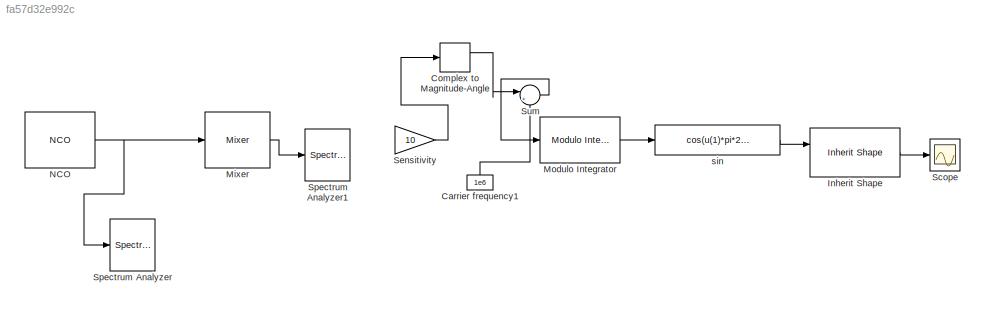
MODEL slx_fa57d32e992c
KIND model
CONFIG AbsTol = auto
CONFIG FixedStep = auto
CONFIG MaxStep = auto
CONFIG MinStep = auto
CONFIG RelTol = 1e-3
CONFIG SampleTimeConstraint = Unconstrained
CONFIG Solver = VariableStepAuto
CONFIG SolverMode = Auto
CONFIG SolverName = VariableStepAuto
CONFIG StartTime = 0.0
CONFIG StopTime = 1600
BLOCK [Constant] Carrier frequency1
  Value = 1e6
BLOCK [ComplexToMagnitudeAngle] Complex to Magnitude-Angle
  Ports = [1, 2]
BLOCK [Reference] Inherit Shape  REF=commblksprivate/Inherit Shape
  Ports = [2, 1]
  SourceBlock = commblksprivate/Inherit Shape
  SourceType = Inherit Shape
BLOCK [Reference] Mixer  REF=rfmathmodels1/Mixer
  Ports = [1, 1]
  SourceBlock = rfmathmodels1/Mixer
  SourceType = Mixer
BLOCK [Reference] Modulo Integrator  REF=commsynccomp2/Continuous-Time
VCO/Modulo 
Integrator
  Ports = [1, 1]
  SourceBlock = commsynccomp2/Continuous-Time\nVCO/Modulo \nIntegrator
BLOCK [Reference] NCO  REF=dspsigops/NCO
  Ports = [0, 1]
  SourceBlock = dspsigops/NCO
  SourceType = NCO
BLOCK [Scope] Scope
  Ports = [1]
  ScopeSpecificationString = Simulink.scopes.TimeScopeBlockCfg('CurrentConfiguration', extmgr.ConfigurationSet(extmgr.Configuration('Core','General UI',true),extmgr.Configuration('Core','Source UI',true),extmgr.Configuration('Sources','WiredSimulink',true),extmgr.Configuration('Visuals','Time Domain',true,'SerializedDisplays',{struct('MinYLimReal','-1.22832','MaxYLimReal','1.17555','YLabelReal','','MinYLimMag','0.00000','MaxY...<+1360ch>
BLOCK [Gain] Sensitivity
  Gain = 10
BLOCK [SpectrumAnalyzer] Spectrum Analyzer
  Ports = [1]
  ScopeSpecificationString = spbscopes.SpectrumAnalyzerBlockCfg('CurrentConfiguration', extmgr.ConfigurationSet(extmgr.Configuration('Core','General UI',true),extmgr.Configuration('Core','Source UI',true),extmgr.Configuration('Sources','WiredSimulink',true),extmgr.Configuration('Visuals','Spectrum',true,'AxesProperties',struct('Color',[0 0 0],'XColor',[0.686274509803922 0.686274509803922 0.686274509803922],'YColor',[0.6862745...<+1192ch>
BLOCK [SpectrumAnalyzer] Spectrum Analyzer1
  Ports = [1]
  ScopeSpecificationString = spbscopes.SpectrumAnalyzerBlockCfg('CurrentConfiguration', extmgr.ConfigurationSet(extmgr.Configuration('Core','General UI',true),extmgr.Configuration('Core','Source UI',true),extmgr.Configuration('Sources','WiredSimulink',true),extmgr.Configuration('Visuals','Spectrum',true,'AxesProperties',struct('Color',[0 0 0],'XColor',[0.686274509803922 0.686274509803922 0.686274509803922],'YColor',[0.6862745...<+1193ch>
BLOCK [Sum] Sum
  IconShape = round
  Inputs = |++
  Ports = [2, 1]
BLOCK [Fcn] sin
  Expr = cos(u(1)*pi*2+2)
LINE Carrier frequency1:1 -> Sum:2
LINE Complex to Magnitude-Angle:1 -> Sum:1
LINE Inherit Shape:1 -> Scope:1
LINE Mixer:1 -> Spectrum Analyzer1:1
LINE Modulo Integrator:1 -> sin:1
NET NCO:1 -> Mixer:1, Spectrum Analyzer:1
LINE Sensitivity:1 -> Complex to Magnitude-Angle:1
LINE Sum:1 -> Modulo Integrator:1
LINE sin:1 -> Inherit Shape:1
note: NET lines group one-source signal fan-out (src -> all destinations, sorted); 1:1 wires keep LINE
